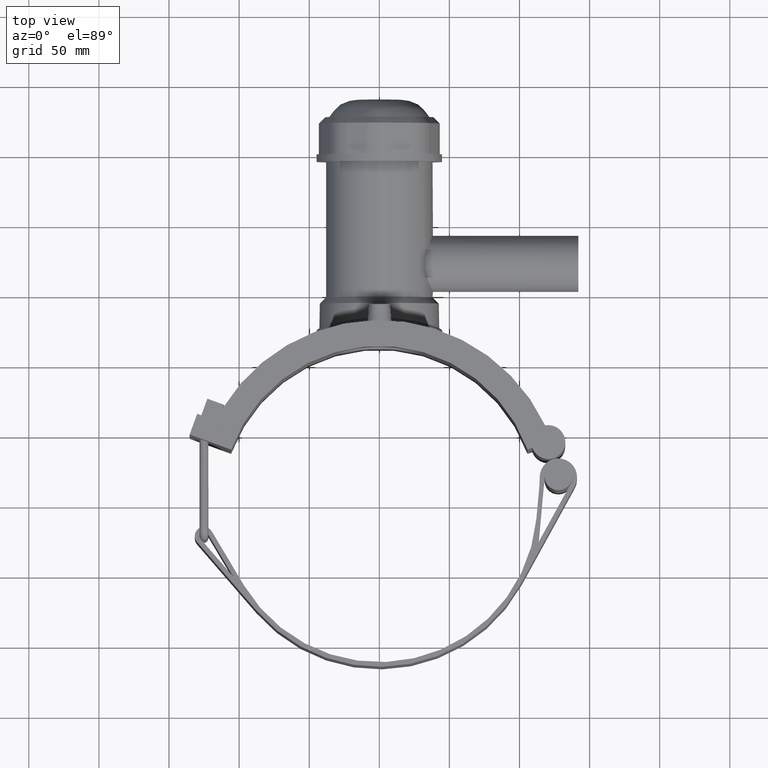
[diagram: clean part render]
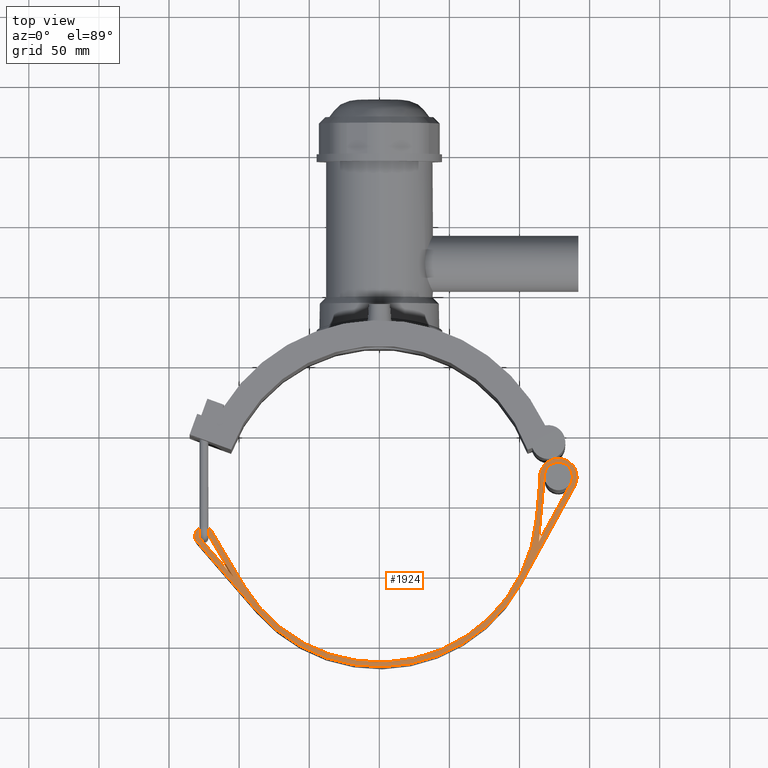
[diagram: same view with one face highlighted and labeled with its STEP entity id]
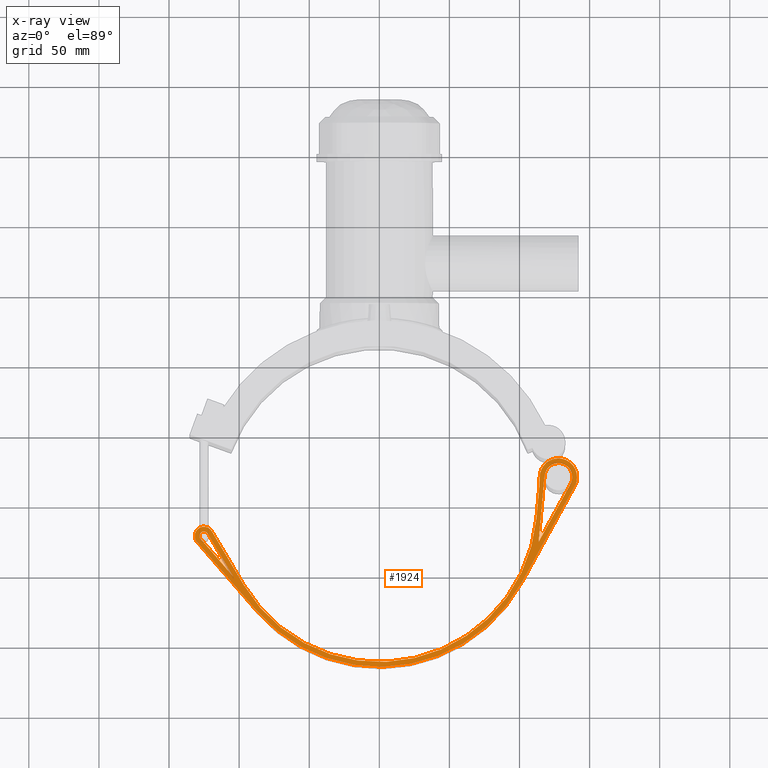
[diagram: x-ray of the same camera — body ghosted, the highlighted face saturated]
A machine part, top view. The second image highlights one B-rep face of the part: STEP entity #1924.
The next image is the same camera in x-ray: the body ghosted, the highlighted face saturated — about 0% of this face is hidden behind the body in this view.
In plain terms, the highlighted planar face has unit normal (0, 0, 1).
Its self-contained STEP definition (entity closure, byte-faithful):
#97=LINE('',#3326,#258);
#100=LINE('',#3332,#261);
#108=LINE('',#3365,#269);
#109=LINE('',#3369,#270);
#110=LINE('',#3373,#271);
#111=LINE('',#3377,#272);
#112=LINE('',#3387,#273);
#113=LINE('',#3388,#274);
#258=VECTOR('',#2432,47.6277081162415);
#261=VECTOR('',#2437,47.6277081162415);
#269=VECTOR('',#2465,21.0798548940247);
#270=VECTOR('',#2468,44.6632069155137);
#271=VECTOR('',#2471,64.8408064183196);
#272=VECTOR('',#2474,78.5940764062651);
#273=VECTOR('',#2483,35.6524694575272);
#274=VECTOR('',#2484,35.6524694575272);
#376=FACE_BOUND('',#640,.T.);
#377=FACE_BOUND('',#641,.T.);
#503=FACE_OUTER_BOUND('',#639,.T.);
#639=EDGE_LOOP('',(#1483,#1484,#1485,#1486,#1487,#1488,#1489,#1490,#1491,
#1492));
#640=EDGE_LOOP('',(#1493,#1494,#1495));
#641=EDGE_LOOP('',(#1496,#1497,#1498));
#775=CIRCLE('',#2089,112.5);
#776=CIRCLE('',#2090,6.525);
#777=CIRCLE('',#2091,115.875);
#778=CIRCLE('',#2092,13.3269230769231);
#779=CIRCLE('',#2093,13.3269230769231);
#780=CIRCLE('',#2094,112.5);
#781=CIRCLE('',#2095,3.15000000000001);
#782=CIRCLE('',#2096,9.95192307692308);
#884=VERTEX_POINT('',#3323);
#885=VERTEX_POINT('',#3325);
#887=VERTEX_POINT('',#3331);
#901=VERTEX_POINT('',#3363);
#902=VERTEX_POINT('',#3364);
#903=VERTEX_POINT('',#3366);
#904=VERTEX_POINT('',#3368);
#905=VERTEX_POINT('',#3370);
#906=VERTEX_POINT('',#3372);
#907=VERTEX_POINT('',#3374);
#908=VERTEX_POINT('',#3376);
#909=VERTEX_POINT('',#3378);
#910=VERTEX_POINT('',#3380);
#911=VERTEX_POINT('',#3383);
#912=VERTEX_POINT('',#3384);
#913=VERTEX_POINT('',#3386);
#1097=EDGE_CURVE('',#885,#884,#97,.T.);
#1100=EDGE_CURVE('',#887,#885,#100,.T.);
#1116=EDGE_CURVE('',#901,#902,#108,.T.);
#1117=EDGE_CURVE('',#902,#903,#775,.T.);
#1118=EDGE_CURVE('',#903,#904,#109,.T.);
#1119=EDGE_CURVE('',#904,#905,#776,.T.);
#1120=EDGE_CURVE('',#905,#906,#110,.T.);
#1121=EDGE_CURVE('',#906,#907,#777,.T.);
#1122=EDGE_CURVE('',#907,#908,#111,.T.);
#1123=EDGE_CURVE('',#908,#909,#778,.T.);
#1124=EDGE_CURVE('',#909,#910,#779,.T.);
#1125=EDGE_CURVE('',#901,#910,#780,.T.);
#1126=EDGE_CURVE('',#911,#912,#781,.T.);
#1127=EDGE_CURVE('',#912,#913,#112,.T.);
#1128=EDGE_CURVE('',#913,#911,#113,.T.);
#1129=EDGE_CURVE('',#887,#884,#782,.T.);
#1483=ORIENTED_EDGE('',*,*,#1116,.T.);
#1484=ORIENTED_EDGE('',*,*,#1117,.T.);
#1485=ORIENTED_EDGE('',*,*,#1118,.T.);
#1486=ORIENTED_EDGE('',*,*,#1119,.T.);
#1487=ORIENTED_EDGE('',*,*,#1120,.T.);
#1488=ORIENTED_EDGE('',*,*,#1121,.T.);
#1489=ORIENTED_EDGE('',*,*,#1122,.T.);
#1490=ORIENTED_EDGE('',*,*,#1123,.T.);
#1491=ORIENTED_EDGE('',*,*,#1124,.T.);
#1492=ORIENTED_EDGE('',*,*,#1125,.F.);
#1493=ORIENTED_EDGE('',*,*,#1126,.T.);
#1494=ORIENTED_EDGE('',*,*,#1127,.T.);
#1495=ORIENTED_EDGE('',*,*,#1128,.T.);
#1496=ORIENTED_EDGE('',*,*,#1100,.T.);
#1497=ORIENTED_EDGE('',*,*,#1097,.T.);
#1498=ORIENTED_EDGE('',*,*,#1129,.F.);
#1830=PLANE('',#2088);
#1924=ADVANCED_FACE('',(#503,#376,#377),#1830,.T.);
#2088=AXIS2_PLACEMENT_3D('',#3362,#2463,#2464);
#2089=AXIS2_PLACEMENT_3D('',#3367,#2466,#2467);
#2090=AXIS2_PLACEMENT_3D('',#3371,#2469,#2470);
#2091=AXIS2_PLACEMENT_3D('',#3375,#2472,#2473);
#2092=AXIS2_PLACEMENT_3D('',#3379,#2475,#2476);
#2093=AXIS2_PLACEMENT_3D('',#3381,#2477,#2478);
#2094=AXIS2_PLACEMENT_3D('',#3382,#2479,#2480);
#2095=AXIS2_PLACEMENT_3D('',#3385,#2481,#2482);
#2096=AXIS2_PLACEMENT_3D('',#3389,#2485,#2486);
#2432=DIRECTION('',(0.0905873526607488,0.995888513608786,0.));
#2437=DIRECTION('',(-0.481783564841131,-0.876290246806942,0.));
#2463=DIRECTION('center_axis',(0.,0.,1.));
#2464=DIRECTION('ref_axis',(1.,0.,0.));
#2465=DIRECTION('',(-0.0905873526607496,-0.995888513608786,0.));
#2466=DIRECTION('center_axis',(0.,0.,-1.));
#2467=DIRECTION('ref_axis',(0.859295298342616,0.511479804338621,0.));
#2468=DIRECTION('',(-0.511479804338622,0.859295298342616,0.));
#2469=DIRECTION('center_axis',(0.,0.,1.));
#2470=DIRECTION('ref_axis',(-1.,0.,0.));
#2471=DIRECTION('',(0.654222560450905,-0.756302083427688,0.));
#2472=DIRECTION('center_axis',(0.,0.,1.));
#2473=DIRECTION('ref_axis',(0.98858601250743,0.150657545030643,0.));
#2474=DIRECTION('',(0.481783564841132,0.876290246806942,0.));
#2475=DIRECTION('center_axis',(0.,0.,1.));
#2476=DIRECTION('ref_axis',(0.333937766224141,-0.942595124265573,0.));
#2477=DIRECTION('center_axis',(0.,0.,1.));
#2478=DIRECTION('ref_axis',(0.333937766224141,-0.942595124265573,0.));
#2479=DIRECTION('center_axis',(0.,0.,1.));
#2480=DIRECTION('ref_axis',(0.998677892414806,-0.0514049336340487,0.));
#2481=DIRECTION('center_axis',(0.,0.,-1.));
#2482=DIRECTION('ref_axis',(0.,-1.,0.));
#2483=DIRECTION('',(0.511479804338621,-0.859295298342616,0.));
#2484=DIRECTION('',(-0.654222560450905,0.756302083427689,0.));
#2485=DIRECTION('center_axis',(0.,0.,1.));
#2486=DIRECTION('ref_axis',(1.,0.,0.));
#3323=CARTESIAN_POINT('',(117.816208062281,20.3667629094291,52.8));
#3325=CARTESIAN_POINT('',(113.501740070732,-27.0651245330477,52.8));
#3326=CARTESIAN_POINT('',(111.296901210728,-51.3044209750099,52.8));
#3331=CARTESIAN_POINT('',(136.447987072188,14.6705715669825,52.8));
#3332=CARTESIAN_POINT('',(104.727436402926,-43.0242341576286,52.8));
#3362=CARTESIAN_POINT('Origin',(10.9856604197406,-66.6198277359929,52.8));
#3363=CARTESIAN_POINT('',(113.947026030311,10.8021081831647,52.8));
#3364=CARTESIAN_POINT('',(112.037457780988,-10.1910771743344,52.8));
#3365=CARTESIAN_POINT('',(114.552404199298,17.4574430304258,52.8));
#3366=CARTESIAN_POINT('',(-96.6707210635443,-57.5414779880949,52.8));
#3367=CARTESIAN_POINT('Origin',(0.,0.,52.8));
#3368=CARTESIAN_POINT('',(-119.515049397827,-19.1625942766905,52.8));
#3369=CARTESIAN_POINT('',(-96.6707210635443,-57.5414779880949,52.8));
#3370=CARTESIAN_POINT('',(-130.056822313878,-26.7688022069422,52.8));
#3371=CARTESIAN_POINT('Origin',(-125.121951219512,-22.5,52.8));
#3372=CARTESIAN_POINT('',(-87.6365039171833,-75.8080391922487,52.8));
#3373=CARTESIAN_POINT('',(-130.056822313878,-26.7688022069422,52.8));
#3374=CARTESIAN_POINT('',(101.540132348754,-55.826670575966,52.8));
#3375=CARTESIAN_POINT('Origin',(0.,0.,52.8));
#3376=CARTESIAN_POINT('',(139.405466655161,13.0445520356437,52.8));
#3377=CARTESIAN_POINT('',(101.540132348754,-55.826670575966,52.8));
#3378=CARTESIAN_POINT('',(123.949690676323,32.2455886969886,52.8));
#3379=CARTESIAN_POINT('Origin',(127.727213942907,19.4652445440072,52.8));
#3380=CARTESIAN_POINT('',(114.401273477424,19.6270759644184,52.8));
#3381=CARTESIAN_POINT('Origin',(127.727213942907,19.4652445440072,52.8));
#3382=CARTESIAN_POINT('Origin',(1.90956824932243,20.9931853574991,52.8));
#3383=CARTESIAN_POINT('',(-127.504302782309,-24.5608010654204,52.8));
#3384=CARTESIAN_POINT('',(-122.415171029733,-20.8888386163333,52.8));
#3385=CARTESIAN_POINT('Origin',(-125.121951219512,-22.5,52.8));
#3386=CARTESIAN_POINT('',(-104.179652927408,-51.5248379954902,52.8));
#3387=CARTESIAN_POINT('',(-85.7981465369504,-82.4061003323276,52.8));
#3388=CARTESIAN_POINT('',(-87.4617644645724,-70.8512486687023,52.8));
#3389=CARTESIAN_POINT('Origin',(127.727213942907,19.4652445440072,52.8));